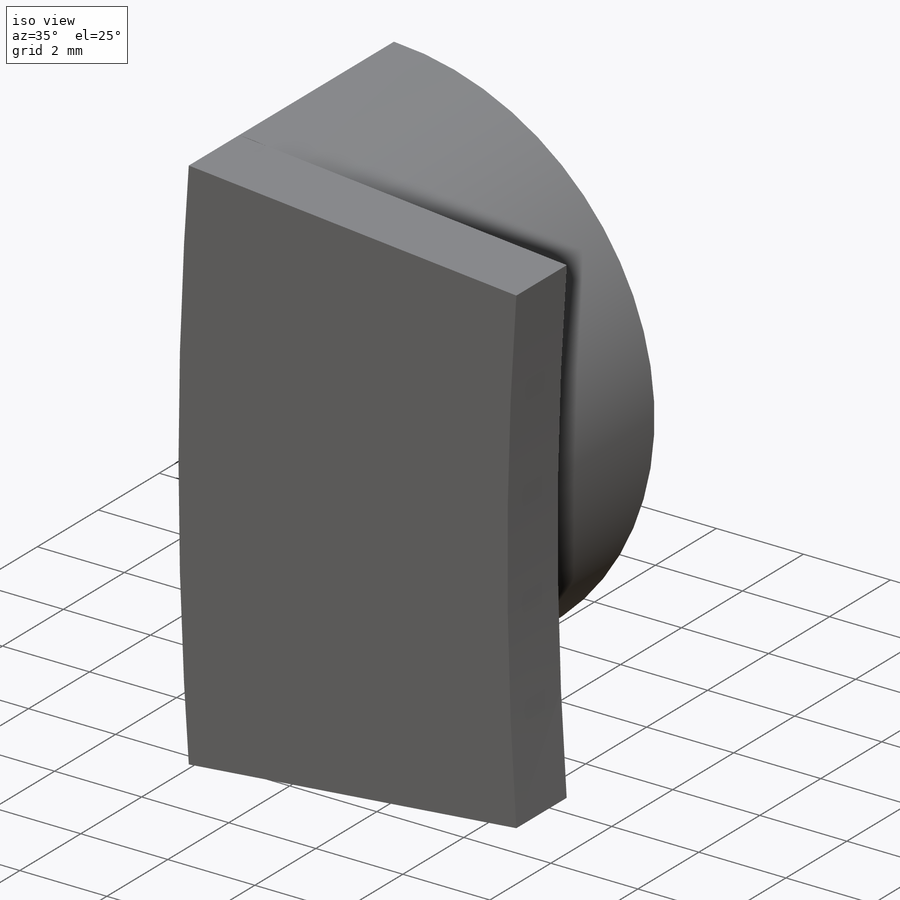
[diagram: iso view]
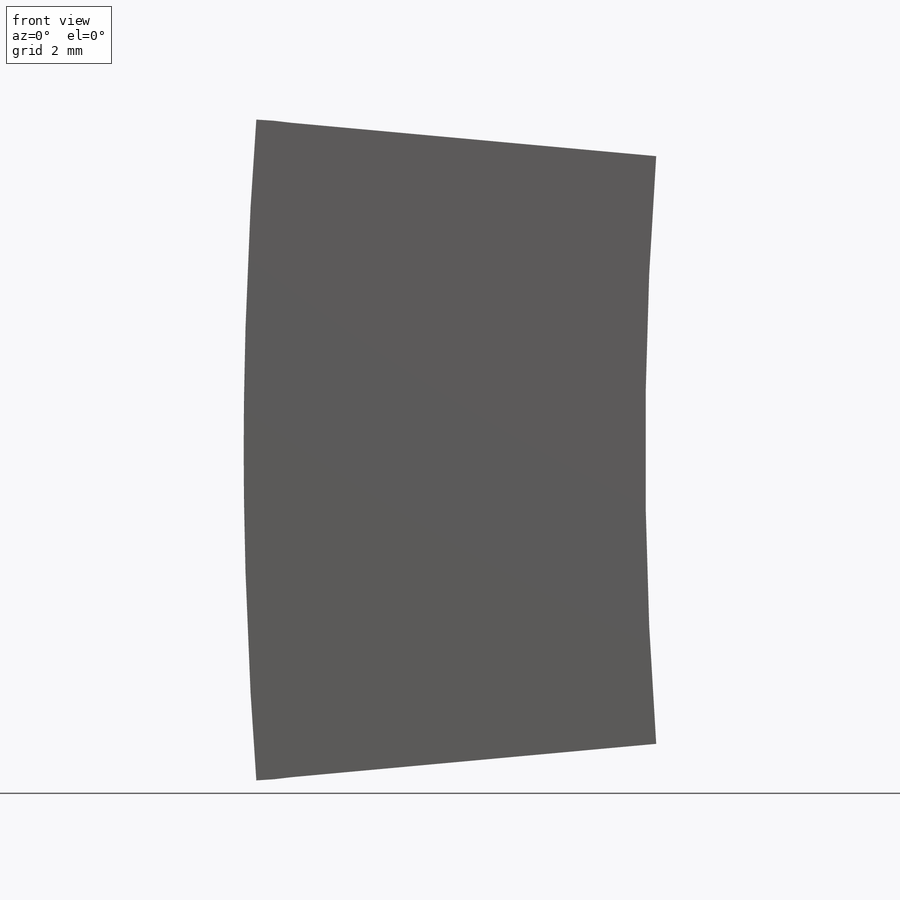
[diagram: front view]
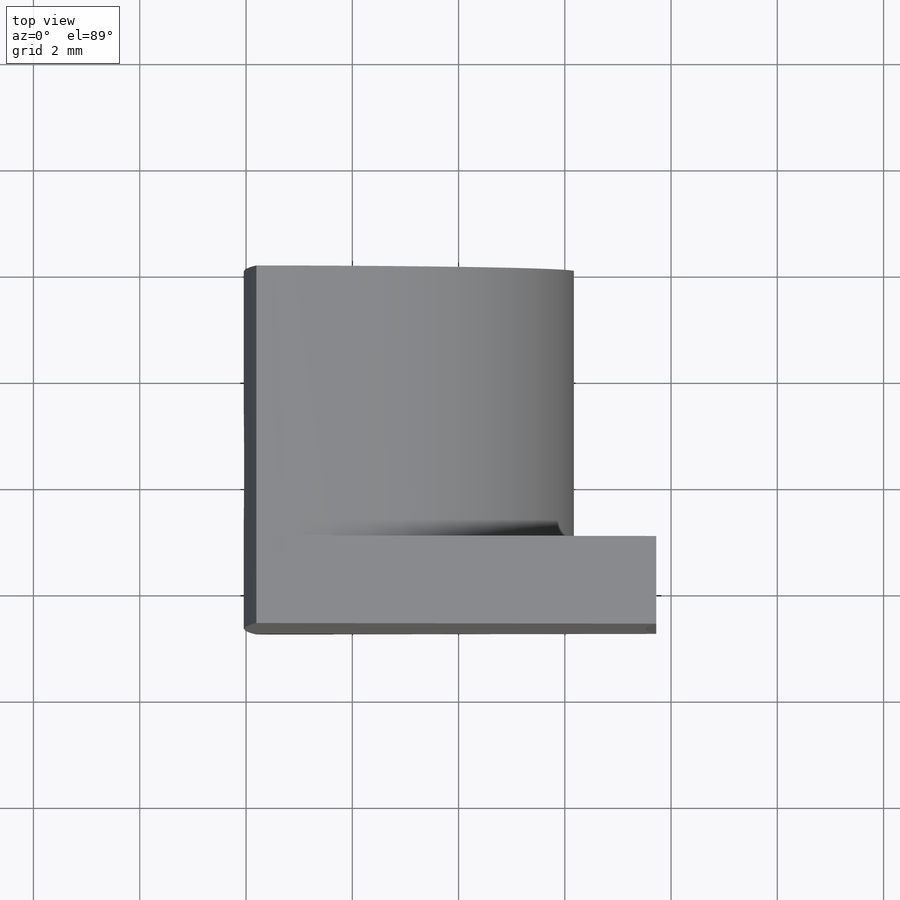
[diagram: top view]
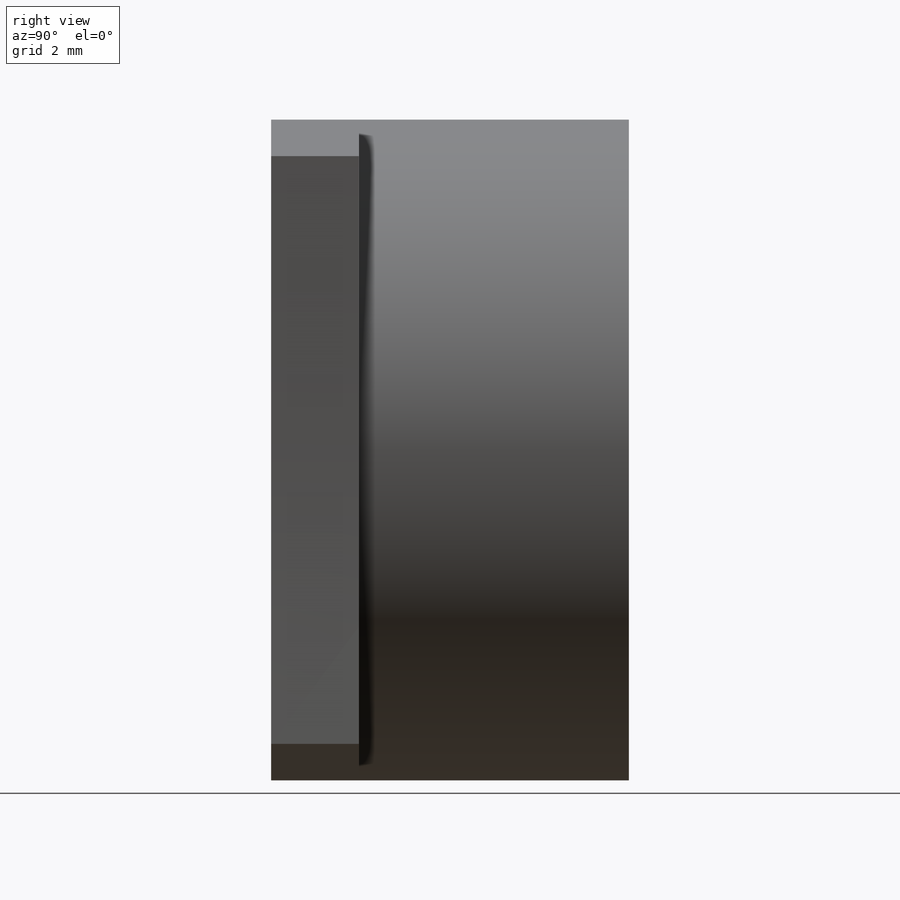
[diagram: right view]
SOLIDWORKS PART (.sldprt)
format: sldprt  version: not decoded by parser v0  size: 171,008 bytes
history: native  units: mm
features: sketch x3, extrude x2, material x1, plane x1, cut_extrude x1 (+13 scaffold rows collapsed)
feature tree (21):
  scaffold x13  (default folders/planes/origin — collapsed)
  material  "Material <not specified>"
  sketch  "Sketch2"  dims[D2=164.084mm D3=12.7mm D4=6.223mm D1=163.9824mm]
  extrude  "Boss-Extrude1"  Depth=5.08mm
  sketch  "Sketch3"  dims[c1.D1=74.422mm c1.D2=74.422mm c2.D1=74.4855mm c2.D2=5.588mm c2.D3=5.588mm c3.D2=5.588mm]
  extrude  "Boss-Extrude2"  Depth=1.651mm
  plane  "Plane1"
  sketch  "Sketch4"  dims[D1=~2.06756mm D2=3.683mm]
  cut_extrude  "Cut-Extrude1"  Depth=3.175mm
decode coverage: 6 of 6 modeling features carry decoded parameters
note: ~ marks probable driven/reference dimensions
note: suppression state not decoded; provenance and decode notes live in map.json
